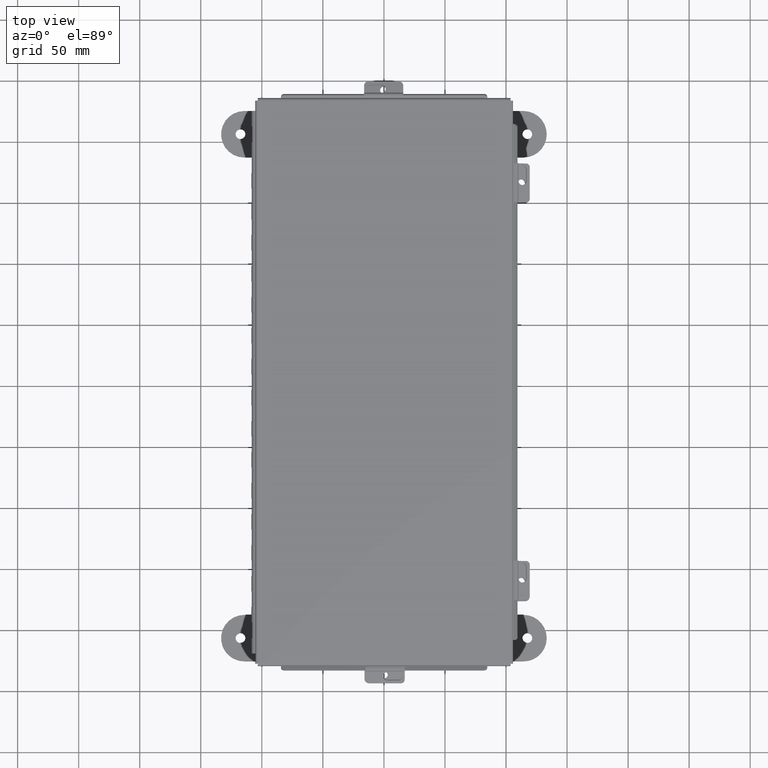
[diagram: clean part render]
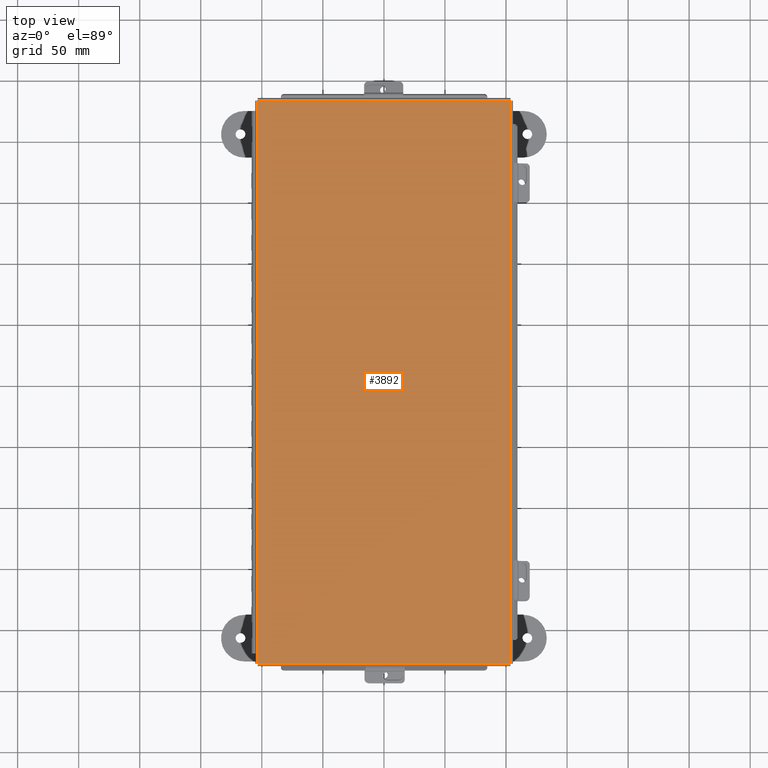
[diagram: same view with one face highlighted and labeled with its STEP entity id]
A machine part, top view. The second image highlights one B-rep face of the part: STEP entity #3892.
In plain terms, the highlighted planar face has unit normal (-0, -0, 1).
Its self-contained STEP definition (entity closure, byte-faithful):
#11 = EDGE_CURVE ( 'NONE', #8186, #11099, #2914, .T. ) ;
#1217 = CARTESIAN_POINT ( 'NONE',  ( -4.068550000000001000, 9.068550000000000100, -0.07469999999999994700 ) ) ;
#1422 = DIRECTION ( 'NONE',  ( -0.0000000000000000000, 1.000000000000000000, -0.0000000000000000000 ) ) ;
#2023 = EDGE_CURVE ( 'NONE', #4312, #8186, #8660, .T. ) ;
#2914 = LINE ( 'NONE', #12610, #17740 ) ;
#3301 = DIRECTION ( 'NONE',  ( 1.000000000000000000, 0.0000000000000000000, 0.0000000000000000000 ) ) ;
#3892 = ADVANCED_FACE ( 'NONE', ( #13466 ), #12000, .T. ) ;
#4312 = VERTEX_POINT ( 'NONE', #1217 ) ;
#5130 = CARTESIAN_POINT ( 'NONE',  ( -4.074478932188136500, 9.068550000000000100, -0.07469999999999994700 ) ) ;
#5559 = LINE ( 'NONE', #16711, #16925 ) ;
#5897 = ORIENTED_EDGE ( 'NONE', *, *, #2023, .T. ) ;
#7201 = VECTOR ( 'NONE', #1422, 39.37007874015748100 ) ;
#8186 = VERTEX_POINT ( 'NONE', #12819 ) ;
#8245 = ORIENTED_EDGE ( 'NONE', *, *, #11, .T. ) ;
#8660 = LINE ( 'NONE', #5130, #16071 ) ;
#9411 = ORIENTED_EDGE ( 'NONE', *, *, #14349, .T. ) ;
#10798 = DIRECTION ( 'NONE',  ( -1.000000000000000000, 0.0000000000000000000, -0.0000000000000000000 ) ) ;
#10865 = CARTESIAN_POINT ( 'NONE',  ( -4.068550000000000100, -9.068550000000000100, -0.07470000000000022500 ) ) ;
#11001 = DIRECTION ( 'NONE',  ( 0.0000000000000000000, 0.0000000000000000000, -1.000000000000000000 ) ) ;
#11099 = VERTEX_POINT ( 'NONE', #13326 ) ;
#11422 = DIRECTION ( 'NONE',  ( -0.0000000000000000000, -1.000000000000000000, -0.0000000000000000000 ) ) ;
#12000 = PLANE ( 'NONE',  #18587 ) ;
#12610 = CARTESIAN_POINT ( 'NONE',  ( 4.068549999999999200, 9.074478932188133800, -0.07469999999999994700 ) ) ;
#12642 = LINE ( 'NONE', #14740, #7201 ) ;
#12819 = CARTESIAN_POINT ( 'NONE',  ( 4.068549999999999200, 9.068550000000000100, -0.07469999999999994700 ) ) ;
#13326 = CARTESIAN_POINT ( 'NONE',  ( 4.068550000000000100, -9.068550000000000100, -0.07469999999999994700 ) ) ;
#13388 = EDGE_CURVE ( 'NONE', #18692, #4312, #12642, .T. ) ;
#13466 = FACE_OUTER_BOUND ( 'NONE', #16398, .T. ) ;
#14349 = EDGE_CURVE ( 'NONE', #11099, #18692, #5559, .T. ) ;
#14740 = CARTESIAN_POINT ( 'NONE',  ( -4.068550000000000100, -9.074478932188133800, -0.07470000000000022500 ) ) ;
#15027 = CARTESIAN_POINT ( 'NONE',  ( 0.0000000000000000000, 0.0000000000000000000, -0.07470000000000000300 ) ) ;
#15298 = DIRECTION ( 'NONE',  ( -1.000000000000000000, 0.0000000000000000000, 0.0000000000000000000 ) ) ;
#16071 = VECTOR ( 'NONE', #3301, 39.37007874015748100 ) ;
#16398 = EDGE_LOOP ( 'NONE', ( #5897, #8245, #9411, #17484 ) ) ;
#16711 = CARTESIAN_POINT ( 'NONE',  ( 4.074478932188135600, -9.068550000000000100, -0.07469999999999994700 ) ) ;
#16925 = VECTOR ( 'NONE', #15298, 39.37007874015748100 ) ;
#17484 = ORIENTED_EDGE ( 'NONE', *, *, #13388, .T. ) ;
#17740 = VECTOR ( 'NONE', #11422, 39.37007874015748100 ) ;
#18587 = AXIS2_PLACEMENT_3D ( 'NONE', #15027, #11001, #10798 ) ;
#18692 = VERTEX_POINT ( 'NONE', #10865 ) ;